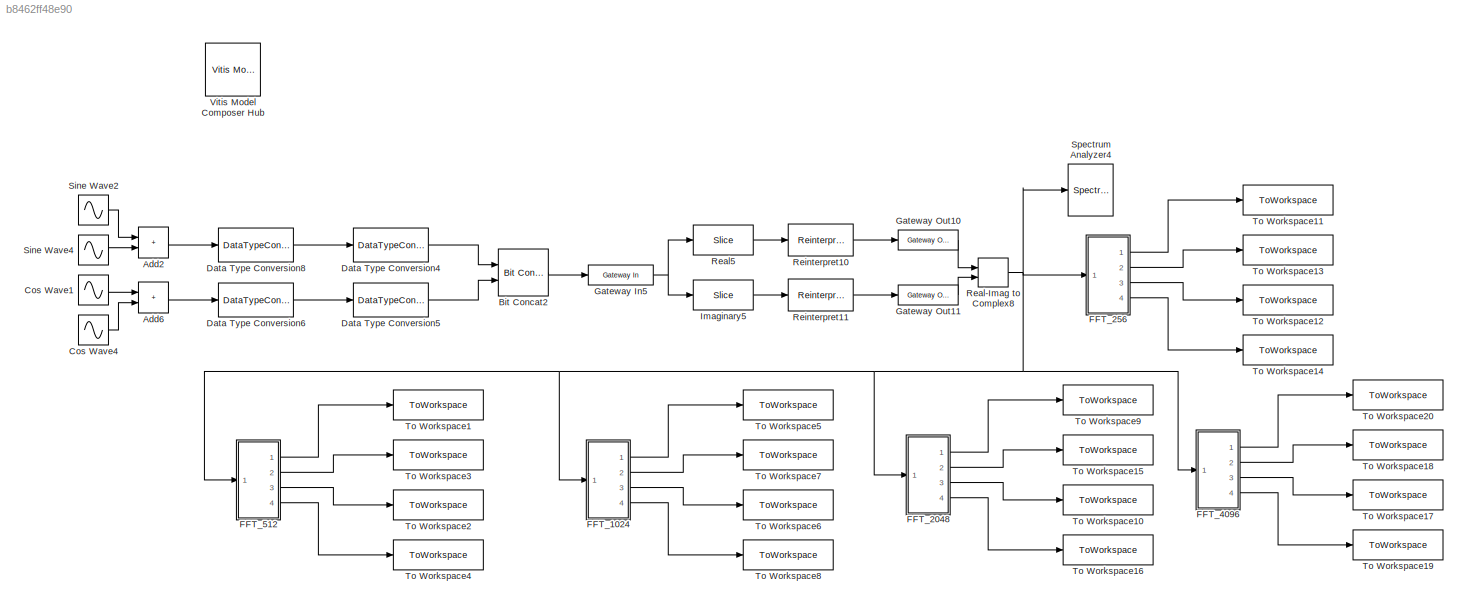
MODEL slx_b8462ff48e90
KIND model
CONFIG AbsTol = auto
CONFIG EnableMultiTasking = off
CONFIG FixedStep = auto
CONFIG InitFcn = f = 12.288e6;\nfs = 153.6e6;\nN1 = 256;\nN2 = 512;\nN3 = 1024;\nN4 = 2048;\nN5 = 4096;\nn1 = 0:N1-1;\nn2 = 0:N2-1;\nn3 = 0:N3-1;\nn4 = 0:N4-1;\nn5 = 0:N5-1;\nHamming1 = 0.54 - 0.46 * cos(2*pi*n1/N1);\nHamming2 = 0.54 - 0.46 * cos(2*pi*n2/N2);\nHamming3 = 0.54 - 0.46 * cos(2*pi*n3/N3);\nHamming4 = 0.54 - 0.46 * cos(2*pi*n4/N4);\nHamming5 = 0.54 - 0.46 * cos(2*pi*n5/N5);\nHanning1 = 0.5 * (1 + cos(2*pi*n1/N1));\nHann...<+425ch>
CONFIG MaxStep = auto
CONFIG MinStep = auto
CONFIG RelTol = 1e-3
CONFIG SampleTimeConstraint = Unconstrained
CONFIG SolverName = VariableStepAuto
CONFIG StartTime = 0.0
CONFIG StopTime = 2048*15/fs
BLOCK [Sum] Add2
  IconShape = rectangular
  Ports = [2, 1]
BLOCK [Sum] Add6
  IconShape = rectangular
  Ports = [2, 1]
BLOCK [Reference] Bit Concat2  REF=hdlsllib/Logic and Bit
Operations/Bit Concat
  Ports = [2, 1]
  SourceBlock = hdlsllib/Logic and Bit\nOperations/Bit Concat
  SourceProductBaseCode = SL
  SourceType = Bit Concat
BLOCK [Sin] Cos Wave1
  Amplitude = 0.4
  Frequency = f*2*pi
  Phase = pi/2
  Ports = [0, 1]
  SampleTime = 1/fs
BLOCK [Sin] Cos Wave4
  Amplitude = 0.4
  Frequency = f*pi
  Phase = pi/2
  Ports = [0, 1]
  SampleTime = 1/fs
BLOCK [DataTypeConversion] Data Type Conversion4
  ConvertRealWorld = Stored Integer (SI)
  OutDataTypeStr = uint16
  RndMeth = Floor
  SaturateOnIntegerOverflow = off
BLOCK [DataTypeConversion] Data Type Conversion5
  ConvertRealWorld = Stored Integer (SI)
  OutDataTypeStr = uint16
  RndMeth = Floor
  SaturateOnIntegerOverflow = off
BLOCK [DataTypeConversion] Data Type Conversion6
  OutDataTypeStr = fixdt(1,16,15)
  RndMeth = Floor
BLOCK [DataTypeConversion] Data Type Conversion8
  OutDataTypeStr = fixdt(1,16,15)
  RndMeth = Floor
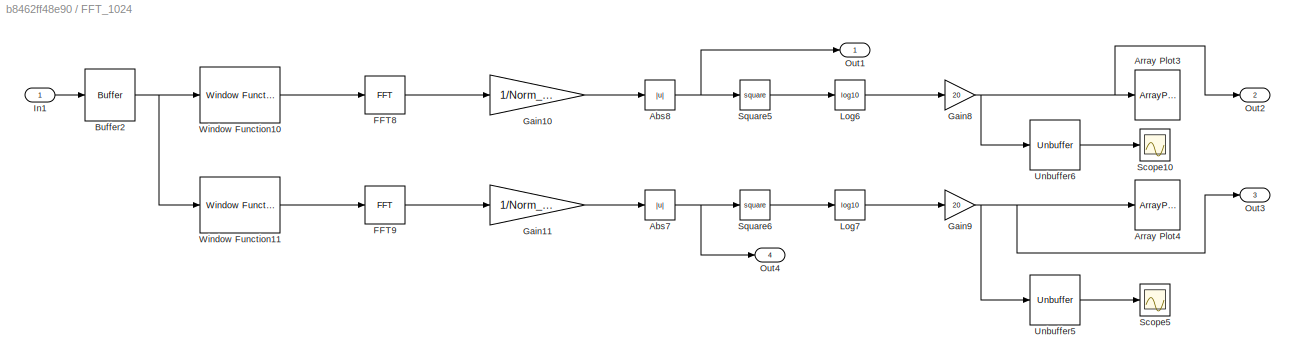
BLOCK [SubSystem] FFT_1024
  Ports = [1, 4]
  RequestExecContextInheritance = off
BLOCK [Abs] FFT_1024/Abs7
  SaturateOnIntegerOverflow = off
BLOCK [Abs] FFT_1024/Abs8
  SaturateOnIntegerOverflow = off
BLOCK [ArrayPlot] FFT_1024/Array Plot3
  Commented = on
  GraphicalSettings = {"Style":{"BackgroundColor":[0.1568627450980392,0.1568627450980392,0.1568627450980392],"AxesColor":[0,0,0],"LabelsColor":[0.6862745098039216,0.6862745098039216,0.6862745098039216],"LineStyle":["-","-"],"LineColor":[[1,1,0.06666666666666667],[0.07450980392156863,0.6235294117647059,1]],"LineWidth":[1.5,1.5],"Marker":["o","o"],"FontSize":"small"}}  <repeated x9 — deduplicated; at blocks: Array Plot3, Array Plot4>
  Ports = [1]
  ShowLegend = on
  WindowPosition = [827.000000,398.000000,581.000000,481.000000,]
  YLimits = [-59.68956955456875,167.07325575587276]
BLOCK [ArrayPlot] FFT_1024/Array Plot4
  Commented = on
  Ports = [1]
  ShowLegend = on
  WindowPosition = [214.000000,393.000000,581.000000,481.000000,]
  YLimits = [-59.68956955456875,167.07325575587276]
BLOCK [Buffer] FFT_1024/Buffer2
  N = N3
  OutputFrames = off
BLOCK [Reference] FFT_1024/FFT8  REF=dspxfrm3/FFT
  Ports = [1, 1]
  SourceBlock = dspxfrm3/FFT
  SourceProductBaseCode = DS
  SourceType = FFT
BLOCK [Reference] FFT_1024/FFT9  REF=dspxfrm3/FFT
  Ports = [1, 1]
  SourceBlock = dspxfrm3/FFT
  SourceProductBaseCode = DS
  SourceType = FFT
BLOCK [Gain] FFT_1024/Gain10
  Gain = 1/Norm_Ham3
BLOCK [Gain] FFT_1024/Gain11
  Gain = 1/Norm_Han3
BLOCK [Gain] FFT_1024/Gain8
  Gain = 20
BLOCK [Gain] FFT_1024/Gain9
  Gain = 20
BLOCK [Inport] FFT_1024/In1
BLOCK [Math] FFT_1024/Log6
  Operator = log10
  OutputSignalType = complex
  Ports = [1, 1]
BLOCK [Math] FFT_1024/Log7
  Operator = log10
  OutputSignalType = complex
  Ports = [1, 1]
BLOCK [Outport] FFT_1024/Out1
BLOCK [Outport] FFT_1024/Out2
  Port = 2
BLOCK [Outport] FFT_1024/Out3
  Port = 3
BLOCK [Outport] FFT_1024/Out4
  Port = 4
BLOCK [Scope] FFT_1024/Scope10
  Commented = on
  Floating = off
  NumInputPorts = 1
  Ports = [1]
  ScopeSpecificationString = Simulink.scopes.TimeScopeBlockCfg('CurrentConfiguration', extmgr.ConfigurationSet(extmgr.Configuration('Core','General UI',true),extmgr.Configuration('Core','Source UI',true),extmgr.Configuration('Sources','WiredSimulink',true,'DataLoggingVariableName','ScopeData1'),extmgr.Configuration('Visuals','Time Domain',true,'SerializedDisplays',{struct('MinYLimReal','-108.57215','MaxYLimReal','172.51218','...<+1435ch>  <repeated x4 — deduplicated; at blocks: Scope10>
BLOCK [Scope] FFT_1024/Scope5
  Commented = on
  Floating = off
  NumInputPorts = 1
  Ports = [1]
  ScopeSpecificationString = Simulink.scopes.TimeScopeBlockCfg('CurrentConfiguration', extmgr.ConfigurationSet(extmgr.Configuration('Core','General UI',true),extmgr.Configuration('Core','Source UI',true),extmgr.Configuration('Sources','WiredSimulink',true,'DataLoggingVariableName','ScopeData2'),extmgr.Configuration('Visuals','Time Domain',true,'SerializedDisplays',{struct('MinYLimReal','-108.57215','MaxYLimReal','172.51218','...<+1435ch>  <repeated x5 — deduplicated; at blocks: Scope5>
BLOCK [Math] FFT_1024/Square5
  Operator = square
  Ports = [1, 1]
BLOCK [Math] FFT_1024/Square6
  Operator = square
  Ports = [1, 1]
BLOCK [Unbuffer] FFT_1024/Unbuffer5
  Ports = [1, 1]
BLOCK [Unbuffer] FFT_1024/Unbuffer6
  Ports = [1, 1]
BLOCK [Reference] FFT_1024/Window Function10  REF=dspsigops/Window
Function
  Ports = [1, 1]
  SourceBlock = dspsigops/Window\nFunction
  SourceProductBaseCode = DS
  SourceType = Window Function
BLOCK [Reference] FFT_1024/Window Function11  REF=dspsigops/Window
Function
  Ports = [1, 1]
  SourceBlock = dspsigops/Window\nFunction
  SourceProductBaseCode = DS
  SourceType = Window Function
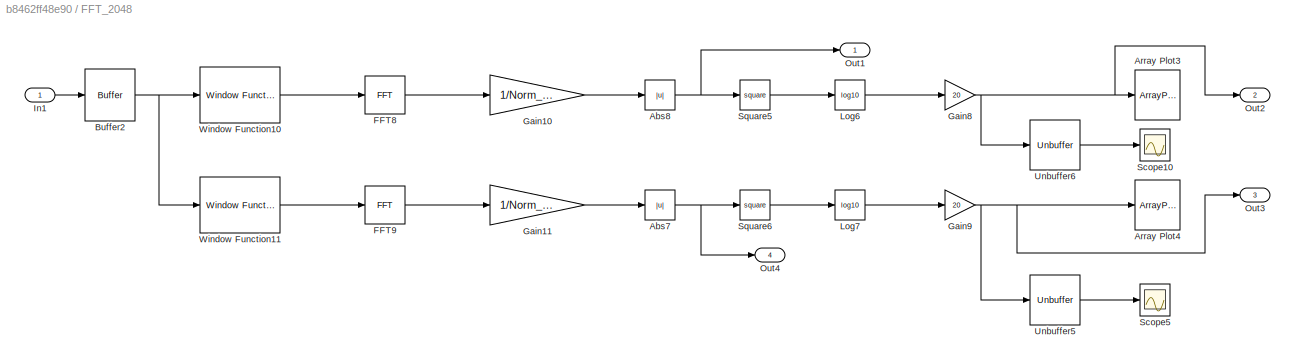
BLOCK [SubSystem] FFT_2048
  Ports = [1, 4]
  RequestExecContextInheritance = off
BLOCK [Abs] FFT_2048/Abs7
  SaturateOnIntegerOverflow = off
BLOCK [Abs] FFT_2048/Abs8
  SaturateOnIntegerOverflow = off
BLOCK [ArrayPlot] FFT_2048/Array Plot3
  Commented = on
  Ports = [1]
  ShowLegend = on
  WindowPosition = [827.000000,398.000000,581.000000,481.000000,]
  YLimits = [-59.68956955456875,167.07325575587276]
BLOCK [ArrayPlot] FFT_2048/Array Plot4
  Commented = on
  Ports = [1]
  ShowLegend = on
  WindowPosition = [214.000000,393.000000,581.000000,481.000000,]
  YLimits = [-59.68956955456875,167.07325575587276]
BLOCK [Buffer] FFT_2048/Buffer2
  N = N4
  OutputFrames = off
BLOCK [Reference] FFT_2048/FFT8  REF=dspxfrm3/FFT
  Ports = [1, 1]
  SourceBlock = dspxfrm3/FFT
  SourceProductBaseCode = DS
  SourceType = FFT
BLOCK [Reference] FFT_2048/FFT9  REF=dspxfrm3/FFT
  Ports = [1, 1]
  SourceBlock = dspxfrm3/FFT
  SourceProductBaseCode = DS
  SourceType = FFT
BLOCK [Gain] FFT_2048/Gain10
  Gain = 1/Norm_Ham4
BLOCK [Gain] FFT_2048/Gain11
  Gain = 1/Norm_Han4
BLOCK [Gain] FFT_2048/Gain8
  Gain = 20
BLOCK [Gain] FFT_2048/Gain9
  Gain = 20
BLOCK [Inport] FFT_2048/In1
BLOCK [Math] FFT_2048/Log6
  Operator = log10
  OutputSignalType = complex
  Ports = [1, 1]
BLOCK [Math] FFT_2048/Log7
  Operator = log10
  OutputSignalType = complex
  Ports = [1, 1]
BLOCK [Outport] FFT_2048/Out1
BLOCK [Outport] FFT_2048/Out2
  Port = 2
BLOCK [Outport] FFT_2048/Out3
  Port = 3
BLOCK [Outport] FFT_2048/Out4
  Port = 4
BLOCK [Scope] FFT_2048/Scope10
  Commented = on
  Floating = off
  NumInputPorts = 1
  Ports = [1]
BLOCK [Scope] FFT_2048/Scope5
  Commented = on
  Floating = off
  NumInputPorts = 1
  Ports = [1]
BLOCK [Math] FFT_2048/Square5
  Operator = square
  Ports = [1, 1]
BLOCK [Math] FFT_2048/Square6
  Operator = square
  Ports = [1, 1]
BLOCK [Unbuffer] FFT_2048/Unbuffer5
  Ports = [1, 1]
BLOCK [Unbuffer] FFT_2048/Unbuffer6
  Ports = [1, 1]
BLOCK [Reference] FFT_2048/Window Function10  REF=dspsigops/Window
Function
  Ports = [1, 1]
  SourceBlock = dspsigops/Window\nFunction
  SourceProductBaseCode = DS
  SourceType = Window Function
BLOCK [Reference] FFT_2048/Window Function11  REF=dspsigops/Window
Function
  Ports = [1, 1]
  SourceBlock = dspsigops/Window\nFunction
  SourceProductBaseCode = DS
  SourceType = Window Function
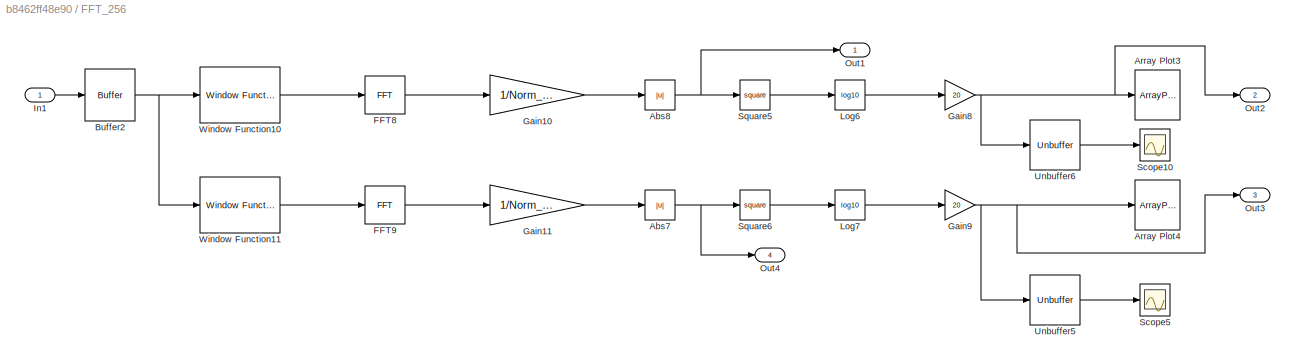
BLOCK [SubSystem] FFT_256
  Ports = [1, 4]
  RequestExecContextInheritance = off
BLOCK [Abs] FFT_256/Abs7
  SaturateOnIntegerOverflow = off
BLOCK [Abs] FFT_256/Abs8
  SaturateOnIntegerOverflow = off
BLOCK [ArrayPlot] FFT_256/Array Plot3
  Commented = on
  Ports = [1]
  ShowLegend = on
  WindowPosition = [827.000000,398.000000,581.000000,481.000000,]
  YLimits = [-59.68956955456875,167.07325575587276]
BLOCK [ArrayPlot] FFT_256/Array Plot4
  Ports = [1]
  ShowLegend = on
  WindowPosition = [214.000000,393.000000,581.000000,481.000000,]
  YLimits = [-59.68956955456875,167.07325575587276]
BLOCK [Buffer] FFT_256/Buffer2
  N = N1
  OutputFrames = off
BLOCK [Reference] FFT_256/FFT8  REF=dspxfrm3/FFT
  Ports = [1, 1]
  SourceBlock = dspxfrm3/FFT
  SourceProductBaseCode = DS
  SourceType = FFT
BLOCK [Reference] FFT_256/FFT9  REF=dspxfrm3/FFT
  Ports = [1, 1]
  SourceBlock = dspxfrm3/FFT
  SourceProductBaseCode = DS
  SourceType = FFT
BLOCK [Gain] FFT_256/Gain10
  Gain = 1/Norm_Ham1
BLOCK [Gain] FFT_256/Gain11
  Gain = 1/Norm_Han1
BLOCK [Gain] FFT_256/Gain8
  Gain = 20
BLOCK [Gain] FFT_256/Gain9
  Gain = 20
BLOCK [Inport] FFT_256/In1
BLOCK [Math] FFT_256/Log6
  Operator = log10
  OutputSignalType = complex
  Ports = [1, 1]
BLOCK [Math] FFT_256/Log7
  Operator = log10
  OutputSignalType = complex
  Ports = [1, 1]
BLOCK [Outport] FFT_256/Out1
BLOCK [Outport] FFT_256/Out2
  Port = 2
BLOCK [Outport] FFT_256/Out3
  Port = 3
BLOCK [Outport] FFT_256/Out4
  Port = 4
BLOCK [Scope] FFT_256/Scope10
  Floating = off
  NumInputPorts = 1
  Ports = [1]
  ScopeSpecificationString = Simulink.scopes.TimeScopeBlockCfg('CurrentConfiguration', extmgr.ConfigurationSet(extmgr.Configuration('Core','General UI',true),extmgr.Configuration('Core','Source UI',true),extmgr.Configuration('Sources','WiredSimulink',true,'DataLoggingVariableName','ScopeData1'),extmgr.Configuration('Visuals','Time Domain',true,'SerializedDisplays',{struct('MinYLimReal','-76.91149','MaxYLimReal','190.68669','Y...<+1477ch>
BLOCK [Scope] FFT_256/Scope5
  Commented = on
  Floating = off
  NumInputPorts = 1
  Ports = [1]
BLOCK [Math] FFT_256/Square5
  Operator = square
  Ports = [1, 1]
BLOCK [Math] FFT_256/Square6
  Operator = square
  Ports = [1, 1]
BLOCK [Unbuffer] FFT_256/Unbuffer5
  Ports = [1, 1]
BLOCK [Unbuffer] FFT_256/Unbuffer6
  Ports = [1, 1]
BLOCK [Reference] FFT_256/Window Function10  REF=dspsigops/Window
Function
  Ports = [1, 1]
  SourceBlock = dspsigops/Window\nFunction
  SourceProductBaseCode = DS
  SourceType = Window Function
BLOCK [Reference] FFT_256/Window Function11  REF=dspsigops/Window
Function
  Ports = [1, 1]
  SourceBlock = dspsigops/Window\nFunction
  SourceProductBaseCode = DS
  SourceType = Window Function
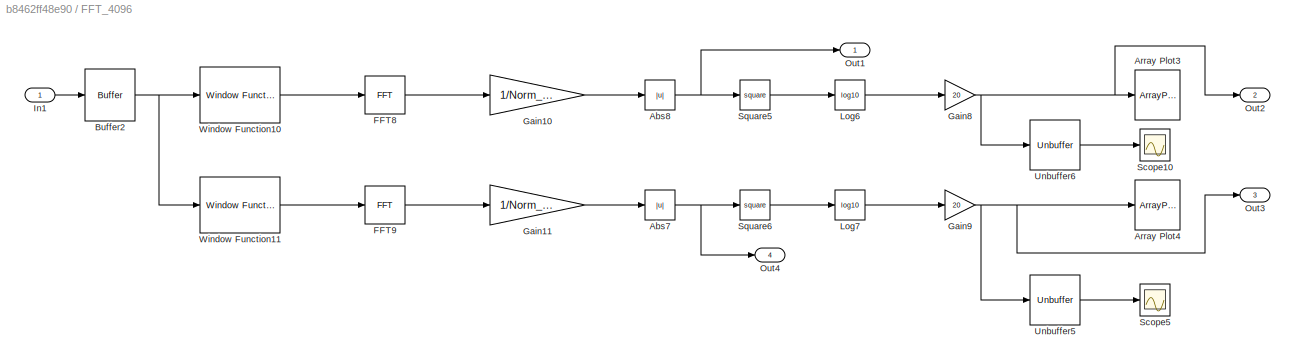
BLOCK [SubSystem] FFT_4096
  Ports = [1, 4]
  RequestExecContextInheritance = off
BLOCK [Abs] FFT_4096/Abs7
  SaturateOnIntegerOverflow = off
BLOCK [Abs] FFT_4096/Abs8
  SaturateOnIntegerOverflow = off
BLOCK [ArrayPlot] FFT_4096/Array Plot3
  Commented = on
  Ports = [1]
  ShowLegend = on
  WindowPosition = [827.000000,398.000000,581.000000,481.000000,]
  YLimits = [-59.68956955456875,167.07325575587276]
BLOCK [ArrayPlot] FFT_4096/Array Plot4
  Commented = on
  Ports = [1]
  ShowLegend = on
  WindowPosition = [214.000000,393.000000,581.000000,481.000000,]
  YLimits = [-59.68956955456875,167.07325575587276]
BLOCK [Buffer] FFT_4096/Buffer2
  N = N5
  OutputFrames = off
BLOCK [Reference] FFT_4096/FFT8  REF=dspxfrm3/FFT
  Ports = [1, 1]
  SourceBlock = dspxfrm3/FFT
  SourceProductBaseCode = DS
  SourceType = FFT
BLOCK [Reference] FFT_4096/FFT9  REF=dspxfrm3/FFT
  Ports = [1, 1]
  SourceBlock = dspxfrm3/FFT
  SourceProductBaseCode = DS
  SourceType = FFT
BLOCK [Gain] FFT_4096/Gain10
  Gain = 1/Norm_Ham5
BLOCK [Gain] FFT_4096/Gain11
  Gain = 1/Norm_Han5
BLOCK [Gain] FFT_4096/Gain8
  Gain = 20
BLOCK [Gain] FFT_4096/Gain9
  Gain = 20
BLOCK [Inport] FFT_4096/In1
BLOCK [Math] FFT_4096/Log6
  Operator = log10
  OutputSignalType = complex
  Ports = [1, 1]
BLOCK [Math] FFT_4096/Log7
  Operator = log10
  OutputSignalType = complex
  Ports = [1, 1]
BLOCK [Outport] FFT_4096/Out1
BLOCK [Outport] FFT_4096/Out2
  Port = 2
BLOCK [Outport] FFT_4096/Out3
  Port = 3
BLOCK [Outport] FFT_4096/Out4
  Port = 4
BLOCK [Scope] FFT_4096/Scope10
  Commented = on
  Floating = off
  NumInputPorts = 1
  Ports = [1]
BLOCK [Scope] FFT_4096/Scope5
  Commented = on
  Floating = off
  NumInputPorts = 1
  Ports = [1]
BLOCK [Math] FFT_4096/Square5
  Operator = square
  Ports = [1, 1]
BLOCK [Math] FFT_4096/Square6
  Operator = square
  Ports = [1, 1]
BLOCK [Unbuffer] FFT_4096/Unbuffer5
  Ports = [1, 1]
BLOCK [Unbuffer] FFT_4096/Unbuffer6
  Ports = [1, 1]
BLOCK [Reference] FFT_4096/Window Function10  REF=dspsigops/Window
Function
  Ports = [1, 1]
  SourceBlock = dspsigops/Window\nFunction
  SourceProductBaseCode = DS
  SourceType = Window Function
BLOCK [Reference] FFT_4096/Window Function11  REF=dspsigops/Window
Function
  Ports = [1, 1]
  SourceBlock = dspsigops/Window\nFunction
  SourceProductBaseCode = DS
  SourceType = Window Function
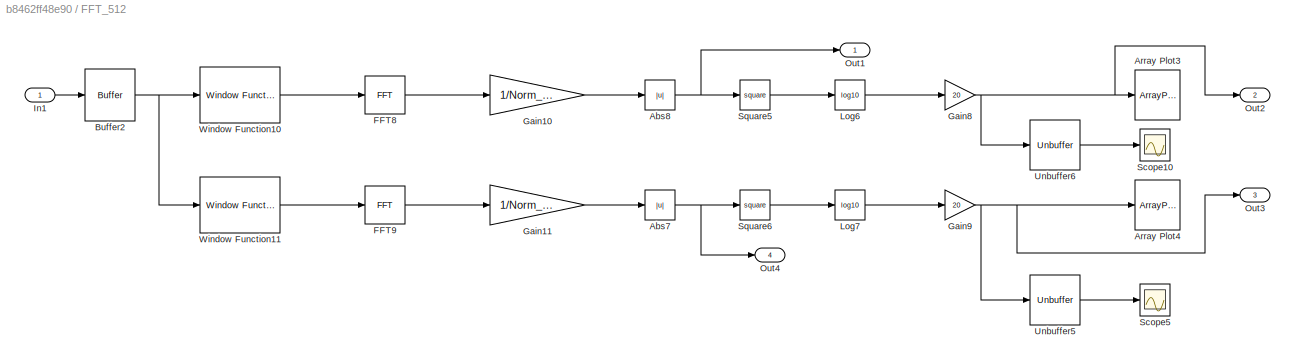
BLOCK [SubSystem] FFT_512
  Ports = [1, 4]
  RequestExecContextInheritance = off
BLOCK [Abs] FFT_512/Abs7
  SaturateOnIntegerOverflow = off
BLOCK [Abs] FFT_512/Abs8
  SaturateOnIntegerOverflow = off
BLOCK [ArrayPlot] FFT_512/Array Plot3
  Commented = on
  GraphicalSettings = {}
  Ports = [1]
  ShowLegend = on
  WindowPosition = [827.000000,398.000000,581.000000,481.000000,]
  YLimits = [-59.68956955456875,167.07325575587276]
BLOCK [ArrayPlot] FFT_512/Array Plot4
  Commented = on
  Ports = [1]
  ShowLegend = on
  WindowPosition = [214.000000,393.000000,581.000000,481.000000,]
  YLimits = [-59.68956955456875,167.07325575587276]
BLOCK [Buffer] FFT_512/Buffer2
  N = N2
  OutputFrames = off
BLOCK [Reference] FFT_512/FFT8  REF=dspxfrm3/FFT
  Ports = [1, 1]
  SourceBlock = dspxfrm3/FFT
  SourceProductBaseCode = DS
  SourceType = FFT
BLOCK [Reference] FFT_512/FFT9  REF=dspxfrm3/FFT
  Ports = [1, 1]
  SourceBlock = dspxfrm3/FFT
  SourceProductBaseCode = DS
  SourceType = FFT
BLOCK [Gain] FFT_512/Gain10
  Gain = 1/Norm_Ham2
BLOCK [Gain] FFT_512/Gain11
  Gain = 1/Norm_Han2
BLOCK [Gain] FFT_512/Gain8
  Gain = 20
BLOCK [Gain] FFT_512/Gain9
  Gain = 20
BLOCK [Inport] FFT_512/In1
BLOCK [Math] FFT_512/Log6
  Operator = log10
  OutputSignalType = complex
  Ports = [1, 1]
BLOCK [Math] FFT_512/Log7
  Operator = log10
  OutputSignalType = complex
  Ports = [1, 1]
BLOCK [Outport] FFT_512/Out1
BLOCK [Outport] FFT_512/Out2
  Port = 2
BLOCK [Outport] FFT_512/Out3
  Port = 3
BLOCK [Outport] FFT_512/Out4
  Port = 4
BLOCK [Scope] FFT_512/Scope10
  Commented = on
  Floating = off
  NumInputPorts = 1
  Ports = [1]
BLOCK [Scope] FFT_512/Scope5
  Commented = on
  Floating = off
  NumInputPorts = 1
  Ports = [1]
BLOCK [Math] FFT_512/Square5
  Operator = square
  Ports = [1, 1]
BLOCK [Math] FFT_512/Square6
  Operator = square
  Ports = [1, 1]
BLOCK [Unbuffer] FFT_512/Unbuffer5
  Ports = [1, 1]
BLOCK [Unbuffer] FFT_512/Unbuffer6
  Ports = [1, 1]
BLOCK [Reference] FFT_512/Window Function10  REF=dspsigops/Window
Function
  Ports = [1, 1]
  SourceBlock = dspsigops/Window\nFunction
  SourceProductBaseCode = DS
  SourceType = Window Function
BLOCK [Reference] FFT_512/Window Function11  REF=dspsigops/Window
Function
  Ports = [1, 1]
  SourceBlock = dspsigops/Window\nFunction
  SourceProductBaseCode = DS
  SourceType = Window Function
BLOCK [Reference] Gateway In5  REF=hdlBasic/Gateway In
  Ports = [1, 1]
  SourceBlock = hdlBasic/Gateway In
  SourceType = Gateway In Block
BLOCK [Reference] Gateway Out10  REF=hdlBasic/Gateway Out
  Ports = [1, 1]
  SourceBlock = hdlBasic/Gateway Out
  SourceType = Gateway Out Block
BLOCK [Reference] Gateway Out11  REF=hdlBasic/Gateway Out
  Ports = [1, 1]
  SourceBlock = hdlBasic/Gateway Out
  SourceType = Gateway Out Block
BLOCK [Reference] Imaginary5  REF=hdlBasic/Slice
  Ports = [1, 1]
  SourceBlock = hdlBasic/Slice
  SourceType = Bit Slice Extractor Block
BLOCK [RealImagToComplex] Real-Imag to Complex8
  Ports = [2, 1]
BLOCK [Reference] Real5  REF=hdlBasic/Slice
  Ports = [1, 1]
  SourceBlock = hdlBasic/Slice
  SourceType = Bit Slice Extractor Block
BLOCK [Reference] Reinterpret10  REF=hdlBasic/Reinterpret
  Ports = [1, 1]
  SourceBlock = hdlBasic/Reinterpret
  SourceType = Type Reinterpreter Block
BLOCK [Reference] Reinterpret11  REF=hdlBasic/Reinterpret
  Ports = [1, 1]
  SourceBlock = hdlBasic/Reinterpret
  SourceType = Type Reinterpreter Block
BLOCK [Sin] Sine Wave2
  Amplitude = 0.4
  Frequency = f*2*pi
  Ports = [0, 1]
  SampleTime = 1/fs
BLOCK [Sin] Sine Wave4
  Amplitude = 0.4
  Frequency = f*pi
  Ports = [0, 1]
  SampleTime = 1/fs
BLOCK [SpectrumAnalyzer] Spectrum Analyzer4
  Ports = [1]
  ScopeSpecificationString = spbscopes.SpectrumAnalyzerBlockCfg('CurrentConfiguration', extmgr.ConfigurationSet(extmgr.Configuration('Core','General UI',true),extmgr.Configuration('Core','Source UI',true),extmgr.Configuration('Sources','WiredSimulink',true),extmgr.Configuration('Visuals','Spectrum',true,'AxesProperties',struct('Color',{[0 0 0],[0 0 0]},'XColor',{[0.686274509803922 0.686274509803922 0.686274509803922],[0.68627...<+1931ch>
BLOCK [ToWorkspace] To Workspace1
  FixptAsFi = on
  MaxDataPoints = inf
  Ports = [1]
  SampleTime = -1
  Save2DSignal = 2-D array (concatenate along first dimension)
  VariableName = AbsHam1
BLOCK [ToWorkspace] To Workspace10
  FixptAsFi = on
  MaxDataPoints = inf
  Ports = [1]
  SampleTime = -1
  Save2DSignal = 2-D array (concatenate along first dimension)
  VariableName = LogHan3
BLOCK [ToWorkspace] To Workspace11
  FixptAsFi = on
  MaxDataPoints = inf
  Ports = [1]
  SampleTime = -1
  Save2DSignal = 2-D array (concatenate along first dimension)
  VariableName = AbsHam
BLOCK [ToWorkspace] To Workspace12
  FixptAsFi = on
  MaxDataPoints = inf
  Ports = [1]
  SampleTime = -1
  Save2DSignal = 2-D array (concatenate along first dimension)
  VariableName = LogHan
BLOCK [ToWorkspace] To Workspace13
  FixptAsFi = on
  MaxDataPoints = inf
  Ports = [1]
  SampleTime = -1
  Save2DSignal = 2-D array (concatenate along first dimension)
  VariableName = LogHam
BLOCK [ToWorkspace] To Workspace14
  FixptAsFi = on
  MaxDataPoints = inf
  Ports = [1]
  SampleTime = -1
  Save2DSignal = 2-D array (concatenate along first dimension)
  VariableName = AbsHan
BLOCK [ToWorkspace] To Workspace15
  FixptAsFi = on
  MaxDataPoints = inf
  Ports = [1]
  SampleTime = -1
  Save2DSignal = 2-D array (concatenate along first dimension)
  VariableName = LogHam3
BLOCK [ToWorkspace] To Workspace16
  FixptAsFi = on
  MaxDataPoints = inf
  Ports = [1]
  SampleTime = -1
  Save2DSignal = 2-D array (concatenate along first dimension)
  VariableName = AbsHan3
BLOCK [ToWorkspace] To Workspace17
  FixptAsFi = on
  MaxDataPoints = inf
  Ports = [1]
  SampleTime = -1
  Save2DSignal = 2-D array (concatenate along first dimension)
  VariableName = LogHan4
BLOCK [ToWorkspace] To Workspace18
  FixptAsFi = on
  MaxDataPoints = inf
  Ports = [1]
  SampleTime = -1
  Save2DSignal = 2-D array (concatenate along first dimension)
  VariableName = LogHam4
BLOCK [ToWorkspace] To Workspace19
  FixptAsFi = on
  MaxDataPoints = inf
  Ports = [1]
  SampleTime = -1
  Save2DSignal = 2-D array (concatenate along first dimension)
  VariableName = AbsHan4
BLOCK [ToWorkspace] To Workspace2
  FixptAsFi = on
  MaxDataPoints = inf
  Ports = [1]
  SampleTime = -1
  Save2DSignal = 2-D array (concatenate along first dimension)
  VariableName = LogHan1
BLOCK [ToWorkspace] To Workspace20
  FixptAsFi = on
  MaxDataPoints = inf
  Ports = [1]
  SampleTime = -1
  Save2DSignal = 2-D array (concatenate along first dimension)
  VariableName = AbsHam4
BLOCK [ToWorkspace] To Workspace3
  FixptAsFi = on
  MaxDataPoints = inf
  Ports = [1]
  SampleTime = -1
  Save2DSignal = 2-D array (concatenate along first dimension)
  VariableName = LogHam1
BLOCK [ToWorkspace] To Workspace4
  FixptAsFi = on
  MaxDataPoints = inf
  Ports = [1]
  SampleTime = -1
  Save2DSignal = 2-D array (concatenate along first dimension)
  VariableName = AbsHan1
BLOCK [ToWorkspace] To Workspace5
  FixptAsFi = on
  MaxDataPoints = inf
  Ports = [1]
  SampleTime = -1
  Save2DSignal = 2-D array (concatenate along first dimension)
  VariableName = AbsHam2
BLOCK [ToWorkspace] To Workspace6
  FixptAsFi = on
  MaxDataPoints = inf
  Ports = [1]
  SampleTime = -1
  Save2DSignal = 2-D array (concatenate along first dimension)
  VariableName = LogHan2
BLOCK [ToWorkspace] To Workspace7
  FixptAsFi = on
  MaxDataPoints = inf
  Ports = [1]
  SampleTime = -1
  Save2DSignal = 2-D array (concatenate along first dimension)
  VariableName = LogHam2
BLOCK [ToWorkspace] To Workspace8
  FixptAsFi = on
  MaxDataPoints = inf
  Ports = [1]
  SampleTime = -1
  Save2DSignal = 2-D array (concatenate along first dimension)
  VariableName = AbsHan2
BLOCK [ToWorkspace] To Workspace9
  FixptAsFi = on
  MaxDataPoints = inf
  Ports = [1]
  SampleTime = -1
  Save2DSignal = 2-D array (concatenate along first dimension)
  VariableName = AbsHam3
BLOCK [Reference] Vitis Model Composer Hub  REF=vmcUtilities/Vitis Model Composer Hub
  Ports = []
  SourceBlock = vmcUtilities/Vitis Model Composer Hub
  SourceType = Implementation
  Tag = genX
  UserDataPersistent = on
LINE Add2:1 -> Data Type Conversion8:1
LINE Add6:1 -> Data Type Conversion6:1
LINE Bit Concat2:1 -> Gateway In5:1
LINE Cos Wave1:1 -> Add6:1
LINE Cos Wave4:1 -> Add6:2
LINE Data Type Conversion4:1 -> Bit Concat2:1
LINE Data Type Conversion5:1 -> Bit Concat2:2
LINE Data Type Conversion6:1 -> Data Type Conversion5:1
LINE Data Type Conversion8:1 -> Data Type Conversion4:1
NET FFT_1024/Abs7:1 -> FFT_1024/Out4:1, FFT_1024/Square6:1
NET FFT_1024/Abs8:1 -> FFT_1024/Out1:1, FFT_1024/Square5:1
NET FFT_1024/Buffer2:1 -> FFT_1024/Window Function10:1, FFT_1024/Window Function11:1
LINE FFT_1024/FFT8:1 -> FFT_1024/Gain10:1
LINE FFT_1024/FFT9:1 -> FFT_1024/Gain11:1
LINE FFT_1024/Gain10:1 -> FFT_1024/Abs8:1
LINE FFT_1024/Gain11:1 -> FFT_1024/Abs7:1
NET FFT_1024/Gain8:1 -> FFT_1024/Array Plot3:1, FFT_1024/Out2:1, FFT_1024/Unbuffer6:1
NET FFT_1024/Gain9:1 -> FFT_1024/Array Plot4:1, FFT_1024/Out3:1, FFT_1024/Unbuffer5:1
LINE FFT_1024/In1:1 -> FFT_1024/Buffer2:1
LINE FFT_1024/Log6:1 -> FFT_1024/Gain8:1
LINE FFT_1024/Log7:1 -> FFT_1024/Gain9:1
LINE FFT_1024/Square5:1 -> FFT_1024/Log6:1
LINE FFT_1024/Square6:1 -> FFT_1024/Log7:1
LINE FFT_1024/Unbuffer5:1 -> FFT_1024/Scope5:1
LINE FFT_1024/Unbuffer6:1 -> FFT_1024/Scope10:1
LINE FFT_1024/Window Function10:1 -> FFT_1024/FFT8:1
LINE FFT_1024/Window Function11:1 -> FFT_1024/FFT9:1
LINE FFT_1024:1 -> To Workspace5:1
LINE FFT_1024:2 -> To Workspace7:1
LINE FFT_1024:3 -> To Workspace6:1
LINE FFT_1024:4 -> To Workspace8:1
NET FFT_2048/Abs7:1 -> FFT_2048/Out4:1, FFT_2048/Square6:1
NET FFT_2048/Abs8:1 -> FFT_2048/Out1:1, FFT_2048/Square5:1
NET FFT_2048/Buffer2:1 -> FFT_2048/Window Function10:1, FFT_2048/Window Function11:1
LINE FFT_2048/FFT8:1 -> FFT_2048/Gain10:1
LINE FFT_2048/FFT9:1 -> FFT_2048/Gain11:1
LINE FFT_2048/Gain10:1 -> FFT_2048/Abs8:1
LINE FFT_2048/Gain11:1 -> FFT_2048/Abs7:1
NET FFT_2048/Gain8:1 -> FFT_2048/Array Plot3:1, FFT_2048/Out2:1, FFT_2048/Unbuffer6:1
NET FFT_2048/Gain9:1 -> FFT_2048/Array Plot4:1, FFT_2048/Out3:1, FFT_2048/Unbuffer5:1
LINE FFT_2048/In1:1 -> FFT_2048/Buffer2:1
LINE FFT_2048/Log6:1 -> FFT_2048/Gain8:1
LINE FFT_2048/Log7:1 -> FFT_2048/Gain9:1
LINE FFT_2048/Square5:1 -> FFT_2048/Log6:1
LINE FFT_2048/Square6:1 -> FFT_2048/Log7:1
LINE FFT_2048/Unbuffer5:1 -> FFT_2048/Scope5:1
LINE FFT_2048/Unbuffer6:1 -> FFT_2048/Scope10:1
LINE FFT_2048/Window Function10:1 -> FFT_2048/FFT8:1
LINE FFT_2048/Window Function11:1 -> FFT_2048/FFT9:1
LINE FFT_2048:1 -> To Workspace9:1
LINE FFT_2048:2 -> To Workspace15:1
LINE FFT_2048:3 -> To Workspace10:1
LINE FFT_2048:4 -> To Workspace16:1
NET FFT_256/Abs7:1 -> FFT_256/Out4:1, FFT_256/Square6:1
NET FFT_256/Abs8:1 -> FFT_256/Out1:1, FFT_256/Square5:1
NET FFT_256/Buffer2:1 -> FFT_256/Window Function10:1, FFT_256/Window Function11:1
LINE FFT_256/FFT8:1 -> FFT_256/Gain10:1
LINE FFT_256/FFT9:1 -> FFT_256/Gain11:1
LINE FFT_256/Gain10:1 -> FFT_256/Abs8:1
LINE FFT_256/Gain11:1 -> FFT_256/Abs7:1
NET FFT_256/Gain8:1 -> FFT_256/Array Plot3:1, FFT_256/Out2:1, FFT_256/Unbuffer6:1
NET FFT_256/Gain9:1 -> FFT_256/Array Plot4:1, FFT_256/Out3:1, FFT_256/Unbuffer5:1
LINE FFT_256/In1:1 -> FFT_256/Buffer2:1
LINE FFT_256/Log6:1 -> FFT_256/Gain8:1
LINE FFT_256/Log7:1 -> FFT_256/Gain9:1
LINE FFT_256/Square5:1 -> FFT_256/Log6:1
LINE FFT_256/Square6:1 -> FFT_256/Log7:1
LINE FFT_256/Unbuffer5:1 -> FFT_256/Scope5:1
LINE FFT_256/Unbuffer6:1 -> FFT_256/Scope10:1
LINE FFT_256/Window Function10:1 -> FFT_256/FFT8:1
LINE FFT_256/Window Function11:1 -> FFT_256/FFT9:1
LINE FFT_256:1 -> To Workspace11:1
LINE FFT_256:2 -> To Workspace13:1
LINE FFT_256:3 -> To Workspace12:1
LINE FFT_256:4 -> To Workspace14:1
NET FFT_4096/Abs7:1 -> FFT_4096/Out4:1, FFT_4096/Square6:1
NET FFT_4096/Abs8:1 -> FFT_4096/Out1:1, FFT_4096/Square5:1
NET FFT_4096/Buffer2:1 -> FFT_4096/Window Function10:1, FFT_4096/Window Function11:1
LINE FFT_4096/FFT8:1 -> FFT_4096/Gain10:1
LINE FFT_4096/FFT9:1 -> FFT_4096/Gain11:1
LINE FFT_4096/Gain10:1 -> FFT_4096/Abs8:1
LINE FFT_4096/Gain11:1 -> FFT_4096/Abs7:1
NET FFT_4096/Gain8:1 -> FFT_4096/Array Plot3:1, FFT_4096/Out2:1, FFT_4096/Unbuffer6:1
NET FFT_4096/Gain9:1 -> FFT_4096/Array Plot4:1, FFT_4096/Out3:1, FFT_4096/Unbuffer5:1
LINE FFT_4096/In1:1 -> FFT_4096/Buffer2:1
LINE FFT_4096/Log6:1 -> FFT_4096/Gain8:1
LINE FFT_4096/Log7:1 -> FFT_4096/Gain9:1
LINE FFT_4096/Square5:1 -> FFT_4096/Log6:1
LINE FFT_4096/Square6:1 -> FFT_4096/Log7:1
LINE FFT_4096/Unbuffer5:1 -> FFT_4096/Scope5:1
LINE FFT_4096/Unbuffer6:1 -> FFT_4096/Scope10:1
LINE FFT_4096/Window Function10:1 -> FFT_4096/FFT8:1
LINE FFT_4096/Window Function11:1 -> FFT_4096/FFT9:1
LINE FFT_4096:1 -> To Workspace20:1
LINE FFT_4096:2 -> To Workspace18:1
LINE FFT_4096:3 -> To Workspace17:1
LINE FFT_4096:4 -> To Workspace19:1
NET FFT_512/Abs7:1 -> FFT_512/Out4:1, FFT_512/Square6:1
NET FFT_512/Abs8:1 -> FFT_512/Out1:1, FFT_512/Square5:1
NET FFT_512/Buffer2:1 -> FFT_512/Window Function10:1, FFT_512/Window Function11:1
LINE FFT_512/FFT8:1 -> FFT_512/Gain10:1
LINE FFT_512/FFT9:1 -> FFT_512/Gain11:1
LINE FFT_512/Gain10:1 -> FFT_512/Abs8:1
LINE FFT_512/Gain11:1 -> FFT_512/Abs7:1
NET FFT_512/Gain8:1 -> FFT_512/Array Plot3:1, FFT_512/Out2:1, FFT_512/Unbuffer6:1
NET FFT_512/Gain9:1 -> FFT_512/Array Plot4:1, FFT_512/Out3:1, FFT_512/Unbuffer5:1
LINE FFT_512/In1:1 -> FFT_512/Buffer2:1
LINE FFT_512/Log6:1 -> FFT_512/Gain8:1
LINE FFT_512/Log7:1 -> FFT_512/Gain9:1
LINE FFT_512/Square5:1 -> FFT_512/Log6:1
LINE FFT_512/Square6:1 -> FFT_512/Log7:1
LINE FFT_512/Unbuffer5:1 -> FFT_512/Scope5:1
LINE FFT_512/Unbuffer6:1 -> FFT_512/Scope10:1
LINE FFT_512/Window Function10:1 -> FFT_512/FFT8:1
LINE FFT_512/Window Function11:1 -> FFT_512/FFT9:1
LINE FFT_512:1 -> To Workspace1:1
LINE FFT_512:2 -> To Workspace3:1
LINE FFT_512:3 -> To Workspace2:1
LINE FFT_512:4 -> To Workspace4:1
NET Gateway In5:1 -> Imaginary5:1, Real5:1
LINE Gateway Out10:1 -> Real-Imag to Complex8:1
LINE Gateway Out11:1 -> Real-Imag to Complex8:2
LINE Imaginary5:1 -> Reinterpret11:1
NET Real-Imag to Complex8:1 -> FFT_1024:1, FFT_2048:1, FFT_256:1, FFT_4096:1, FFT_512:1, Spectrum Analyzer4:1
LINE Real5:1 -> Reinterpret10:1
LINE Reinterpret10:1 -> Gateway Out10:1
LINE Reinterpret11:1 -> Gateway Out11:1
LINE Sine Wave2:1 -> Add2:1
LINE Sine Wave4:1 -> Add2:2
note: NET lines group one-source signal fan-out (src -> all destinations, sorted); 1:1 wires keep LINE
